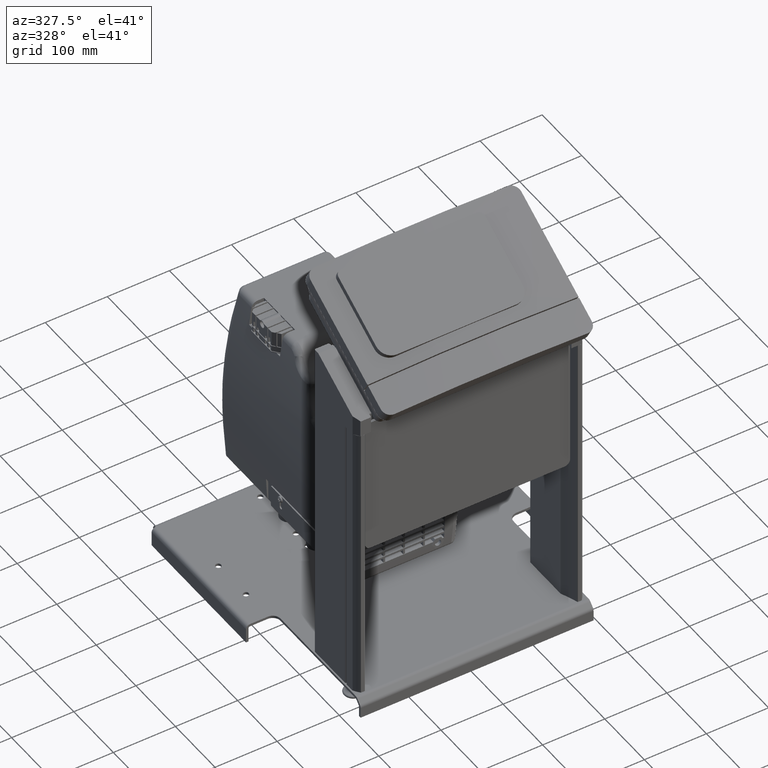
[diagram: clean part render]
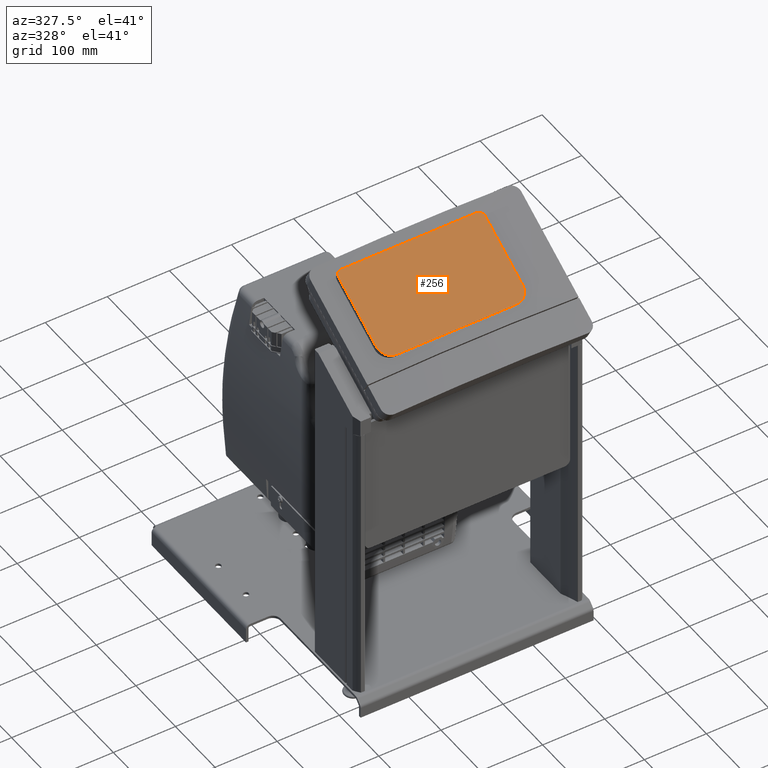
[diagram: same view with one face highlighted and labeled with its STEP entity id]
A machine part, auxiliary view. The second image highlights one B-rep face of the part: STEP entity #256.
In plain terms, the highlighted face is a freeform B-spline surface patch.
Its self-contained STEP definition (entity closure, byte-faithful):
#141=CARTESIAN_POINT('',(-115.28663759985125,-212.53386088753405,603.25014622159222));
#142=VERTEX_POINT('',#141);
#149=CARTESIAN_POINT('',(-136.7866375998513,-193.91431470616908,614.00014622159279));
#150=VERTEX_POINT('',#149);
#151=CARTESIAN_POINT('',(-115.2866375998513,-193.91431470616908,614.00014622159256));
#152=DIRECTION('',(-1.998401E-015,0.500000000000016,-0.866025403784429));
#153=DIRECTION('',(-0.707106781186548,-0.612372435695788,-0.353553390593284));
#154=AXIS2_PLACEMENT_3D('',#151,#152,#153);
#155=CIRCLE('',#154,21.500000000000004);
#156=EDGE_CURVE('',#142,#150,#155,.T.);
#173=CARTESIAN_POINT('',(-136.78663759985164,-98.651520289881319,669.00014622159449));
#174=VERTEX_POINT('',#173);
#175=CARTESIAN_POINT('',(-136.78663759985133,-193.91431470616902,614.00014622159267));
#176=DIRECTION('',(-3.100550E-015,0.86602540378443,0.500000000000015));
#177=VECTOR('',#176,110.00000000000044);
#178=LINE('',#175,#177);
#179=EDGE_CURVE('',#150,#174,#178,.T.);
#198=CARTESIAN_POINT('',(-136.78663759985182,-212.53386088753524,603.25014622159188));
#199=CARTESIAN_POINT('',(99.213362400148725,-212.53386088753413,603.25014622159142));
#200=CARTESIAN_POINT('',(-136.78663759985224,-91.29030435771304,673.25014622159506));
#201=CARTESIAN_POINT('',(99.213362400148299,-91.290304357711932,673.2501462215946));
#202=B_SPLINE_SURFACE_WITH_KNOTS('',1,1,((#198,#200),(#199,#201)),.UNSPECIFIED.,.F.,.F.,.U.,(2,2),(2,2),(0.0,236.00000000000054),(0.0,140.00000000000227),.UNSPECIFIED.);
#203=ORIENTED_EDGE('',*,*,#156,.F.);
#204=CARTESIAN_POINT('',(77.713362400148242,-212.53386088753314,603.2501462215921));
#205=VERTEX_POINT('',#204);
#206=CARTESIAN_POINT('',(77.713362400148242,-212.53386088753314,603.25014622159176));
#207=DIRECTION('',(-1.0,0.0,0.0));
#208=VECTOR('',#207,192.99999999999949);
#209=LINE('',#206,#208);
#210=EDGE_CURVE('',#205,#142,#209,.T.);
#211=ORIENTED_EDGE('',*,*,#210,.F.);
#212=CARTESIAN_POINT('',(99.213362400148128,-193.91431470616817,614.0001462215921));
#213=VERTEX_POINT('',#212);
#214=CARTESIAN_POINT('',(77.713362400148128,-193.91431470616817,614.0001462215921));
#215=DIRECTION('',(-2.692291E-015,0.500000000000013,-0.866025403784431));
#216=DIRECTION('',(0.707106781186549,-0.612372435695787,-0.353553390593284));
#217=AXIS2_PLACEMENT_3D('',#214,#215,#216);
#218=CIRCLE('',#217,21.500000000000004);
#219=EDGE_CURVE('',#213,#205,#218,.T.);
#220=ORIENTED_EDGE('',*,*,#219,.F.);
#221=CARTESIAN_POINT('',(99.213362400147787,-98.651520289880864,669.00014622159392));
#222=VERTEX_POINT('',#221);
#223=CARTESIAN_POINT('',(99.21336240014783,-98.651520289880807,669.00014622159381));
#224=DIRECTION('',(2.971361E-015,-0.86602540378443,-0.500000000000014));
#225=VECTOR('',#224,110.00000000000004);
#226=LINE('',#223,#225);
#227=EDGE_CURVE('',#222,#213,#226,.T.);
#228=ORIENTED_EDGE('',*,*,#227,.F.);
#229=CARTESIAN_POINT('',(90.713362400147787,-91.290304357712785,673.25014622159392));
#230=VERTEX_POINT('',#229);
#231=CARTESIAN_POINT('',(90.713362400147787,-98.651520289880636,669.00014622159381));
#232=DIRECTION('',(-5.412337E-015,0.500000000000013,-0.866025403784431));
#233=DIRECTION('',(0.707106781186543,0.612372435695795,0.353553390593282));
#234=AXIS2_PLACEMENT_3D('',#231,#232,#233);
#235=CIRCLE('',#234,8.500000000000002);
#236=EDGE_CURVE('',#230,#222,#235,.T.);
#237=ORIENTED_EDGE('',*,*,#236,.F.);
#238=CARTESIAN_POINT('',(-128.2866375998517,-91.290304357713921,673.25014622159449));
#239=VERTEX_POINT('',#238);
#240=CARTESIAN_POINT('',(-128.2866375998517,-91.290304357713978,673.25014622159449));
#241=DIRECTION('',(1.0,0.0,0.0));
#242=VECTOR('',#241,218.99999999999949);
#243=LINE('',#240,#242);
#244=EDGE_CURVE('',#239,#230,#243,.T.);
#245=ORIENTED_EDGE('',*,*,#244,.F.);
#246=CARTESIAN_POINT('',(-128.28663759985164,-98.651520289881773,669.00014622159415));
#247=DIRECTION('',(-6.106227E-016,0.500000000000011,-0.866025403784432));
#248=DIRECTION('',(-0.707106781186543,0.612372435695794,0.353553390593285));
#249=AXIS2_PLACEMENT_3D('',#246,#247,#248);
#250=CIRCLE('',#249,8.500000000000002);
#251=EDGE_CURVE('',#174,#239,#250,.T.);
#252=ORIENTED_EDGE('',*,*,#251,.F.);
#253=ORIENTED_EDGE('',*,*,#179,.F.);
#254=EDGE_LOOP('',(#203,#211,#220,#228,#237,#245,#252,#253));
#255=FACE_OUTER_BOUND('',#254,.T.);
#256=ADVANCED_FACE('',(#255),#202,.T.);